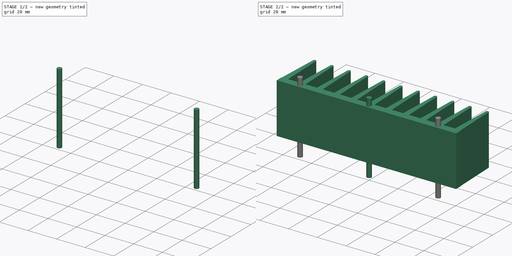
[diagram: build sequence overview — one tinted view per stage of 2, left to right]
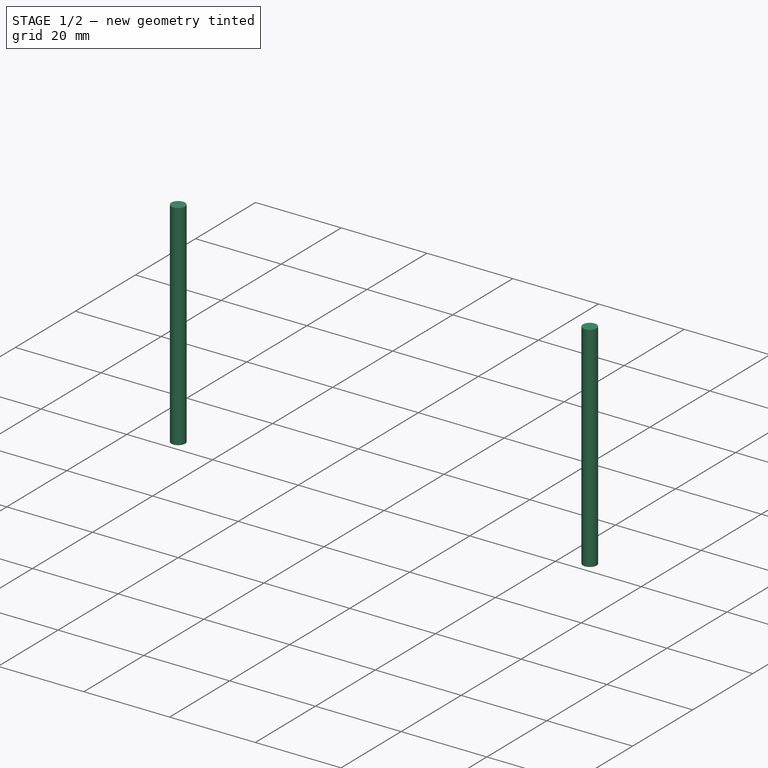
[diagram: stage 1 of 2 — iso view after this stage's code; geometry added in this stage tinted green]
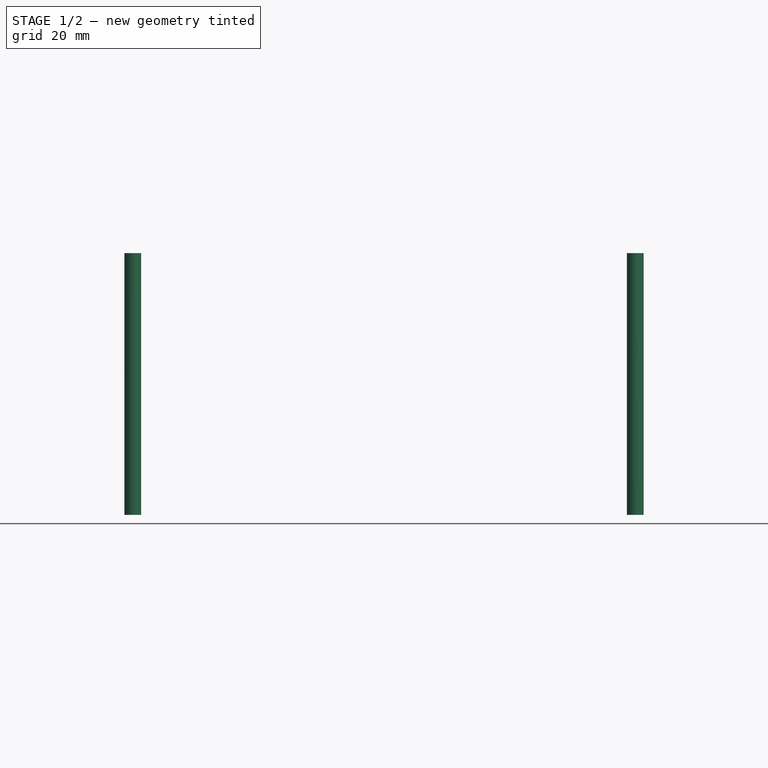
[diagram: stage 1 of 2 — front view after this stage's code; geometry added in this stage tinted green]
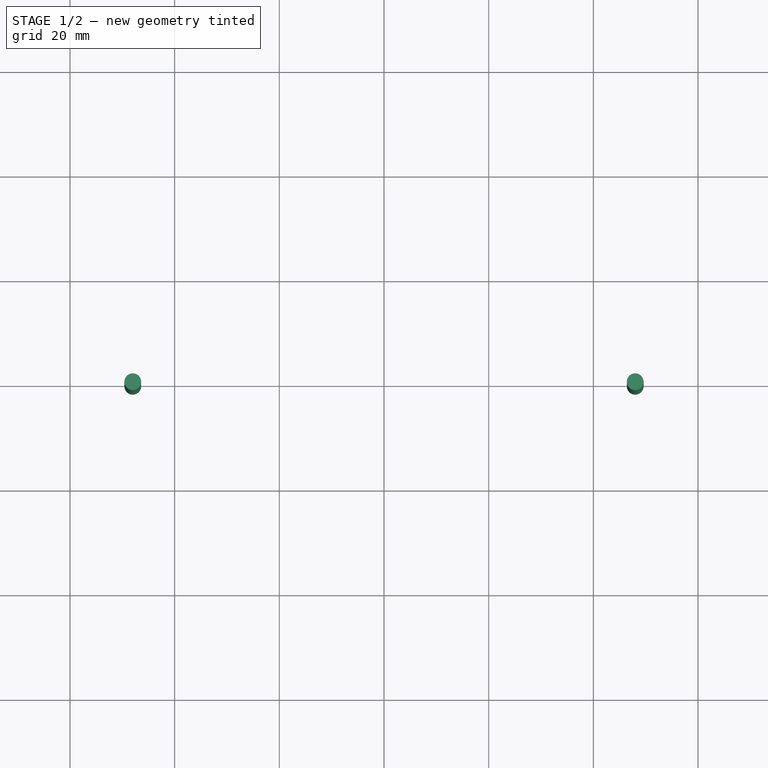
[diagram: stage 1 of 2 — top view after this stage's code; geometry added in this stage tinted green]
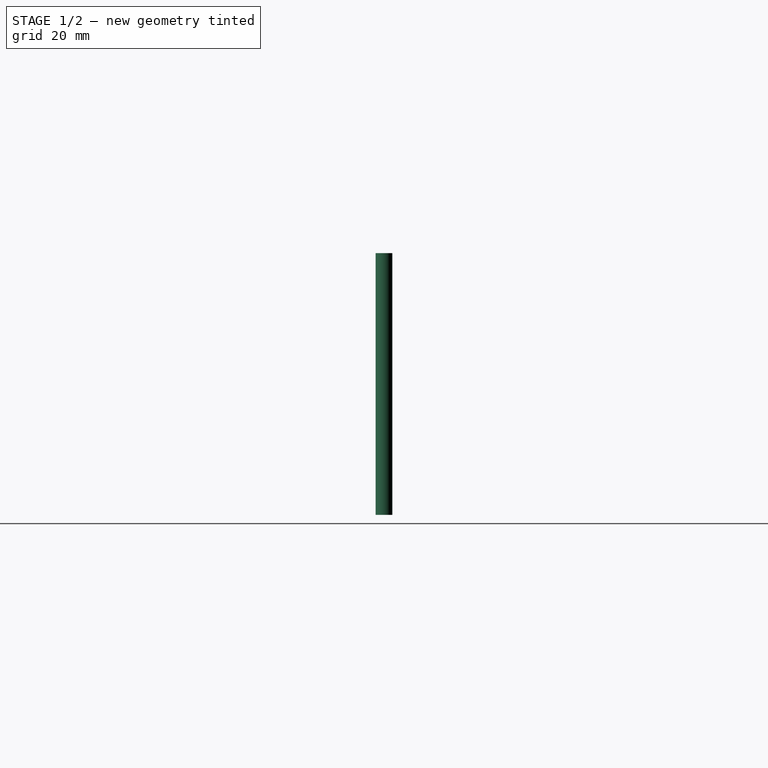
[diagram: stage 1 of 2 — right view after this stage's code; geometry added in this stage tinted green]
FCSTD DOCUMENT  (FreeCAD 0.17R11223 (Git))
Label: Heatsink_125x35x50mm_3xFixationM3_09
License: All rights reserved
LicenseURL: http://en.wikipedia.org/wiki/All_rights_reserved
objects: Part::Cylinder×3, Sketcher::SketchObject×1, PartDesign::Pad×1, PartDesign::Body×1
note: 7 computed .brp shape members not serialized (recipe doc carries the construction recipe); baked Part::Feature solids carry a one-line shape summary decoded from their .brp

FEATURE [Part::Cylinder] Cylinder001
  Angle = 360
  AttacherType = Attacher::AttachEngine3D
  Height = 50
  Placement = pos=(-48,0,-10) rot=(0,0,1;0rad)
  Radius = 1.6
FEATURE [Part::Cylinder] Cylinder002
  Angle = 360
  AttacherType = Attacher::AttachEngine3D
  Height = 50
  Placement = pos=(48,0,-10) rot=(0,0,1;0rad)
  Radius = 1.6
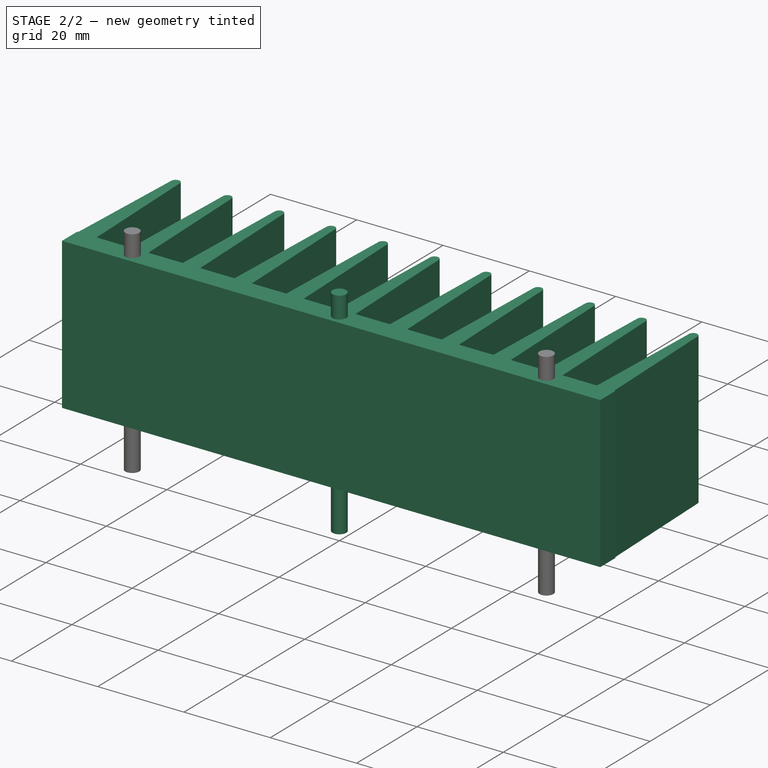
[diagram: stage 2 of 2 — iso view after this stage's code; geometry added in this stage tinted green]
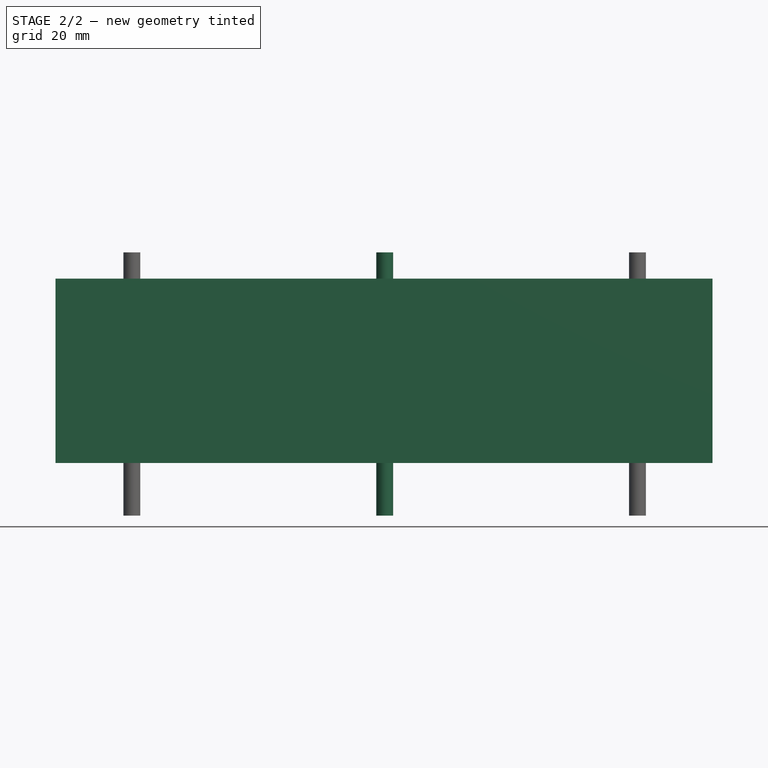
[diagram: stage 2 of 2 — front view after this stage's code; geometry added in this stage tinted green]
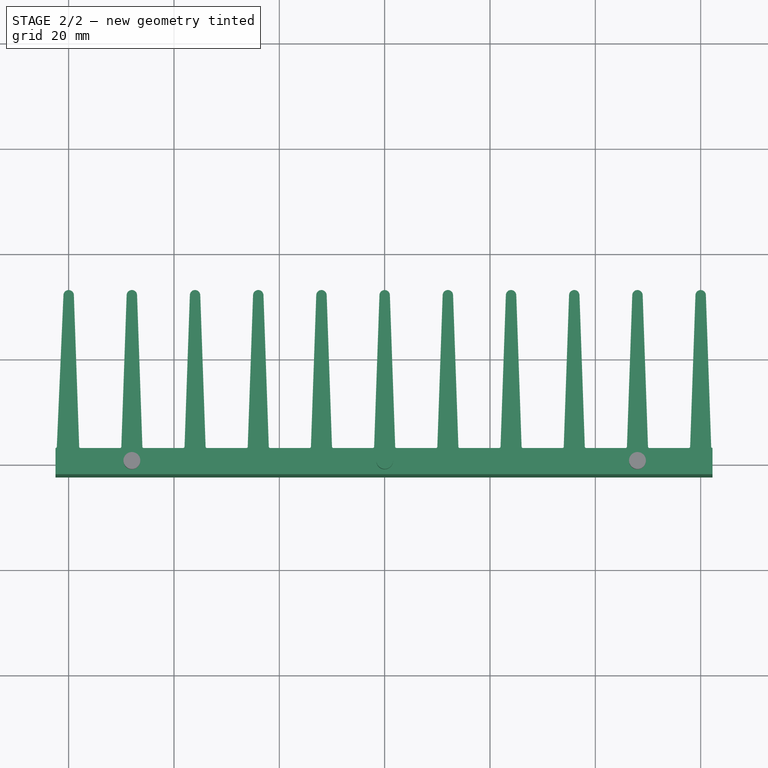
[diagram: stage 2 of 2 — top view after this stage's code; geometry added in this stage tinted green]
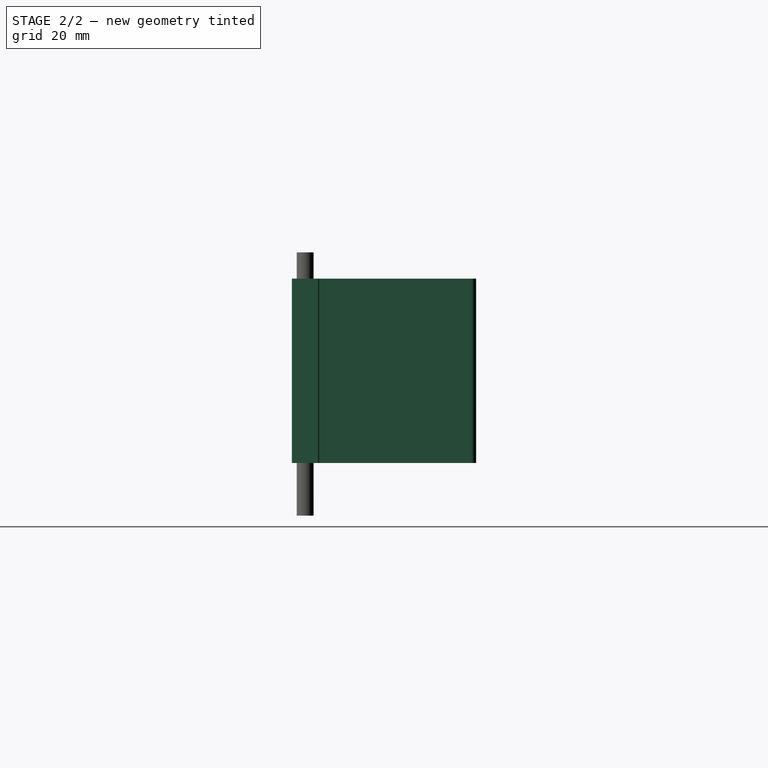
[diagram: stage 2 of 2 — right view after this stage's code; geometry added in this stage tinted green]
FEATURE [Sketcher::SketchObject] Sketch
  MapMode = 5
  Support = -> [XY_Plane]
  sketch-geometry (68):
    g0: LineSegment StartX=62.2489 StartY=-2.54 StartZ=0 EndX=-62.5 EndY=-2.54 EndZ=0
    g1: LineSegment StartX=-62.5 StartY=-2.54 StartZ=0 EndX=-62.5 EndY=2.46126 EndZ=0
    g2: ArcOfCircle CenterX=-62.5 CenterY=2.71126 CenterZ=0 NormalX=0 NormalY=0 NormalZ=1 Radius=0.25 StartAngle=4.71239 EndAngle=6.28319
    g3: LineSegment StartX=-62.25 StartY=2.71126 StartZ=0 EndX=-60.9899 EndY=31.463 EndZ=0
    g4: LineSegment StartX=-59.0099 StartY=31.463 StartZ=0 EndX=-58 EndY=2.71126 EndZ=0
    g5: ArcOfCircle CenterX=-59.9999 CenterY=31.463 CenterZ=0 NormalX=0 NormalY=0 NormalZ=1 Radius=0.99 StartAngle=0 EndAngle=3.14159
    g6: LineSegment StartX=62.2489 StartY=-2.54 StartZ=0 EndX=62.2489 EndY=2.46126 EndZ=0
    g7: ArcOfCircle CenterX=-57.75 CenterY=2.71126 CenterZ=0 NormalX=0 NormalY=0 NormalZ=1 Radius=0.25 StartAngle=3.14159 EndAngle=4.71239
    g8: ArcOfCircle CenterX=-50.2499 CenterY=2.71126 CenterZ=0 NormalX=0 NormalY=0 NormalZ=1 Radius=0.25 StartAngle=4.71239 EndAngle=6.28319
    g9: ArcOfCircle CenterX=-45.7519 CenterY=2.71126 CenterZ=0 NormalX=0 NormalY=0 NormalZ=1 Radius=0.25 StartAngle=3.14159 EndAngle=4.71239
    g10: LineSegment StartX=-47.0109 StartY=31.463 StartZ=0 EndX=-46.0019 EndY=2.71126 EndZ=0
    g11: LineSegment StartX=-49.9999 StartY=2.71126 StartZ=0 EndX=-48.9909 EndY=31.463 EndZ=0
    g12: ArcOfCircle CenterX=-48.0009 CenterY=31.463 CenterZ=0 NormalX=0 NormalY=0 NormalZ=1 Radius=0.99 StartAngle=0 EndAngle=3.14159
    g13: ArcOfCircle CenterX=-38.2484 CenterY=2.71126 CenterZ=0 NormalX=0 NormalY=0 NormalZ=1 Radius=0.25 StartAngle=4.71239 EndAngle=6.28319
    g14: ArcOfCircle CenterX=-33.7504 CenterY=2.71126 CenterZ=0 NormalX=0 NormalY=0 NormalZ=1 Radius=0.25 StartAngle=3.14159 EndAngle=4.71239
    g15: LineSegment StartX=-35.0094 StartY=31.463 StartZ=0 EndX=-34.0004 EndY=2.71126 EndZ=0
    g16: LineSegment StartX=-37.9984 StartY=2.71126 StartZ=0 EndX=-36.9894 EndY=31.463 EndZ=0
    g17: ArcOfCircle CenterX=-35.9994 CenterY=31.463 CenterZ=0 NormalX=0 NormalY=0 NormalZ=1 Radius=0.99 StartAngle=0 EndAngle=3.14159
    g18: ArcOfCircle CenterX=-26.249 CenterY=2.71126 CenterZ=0 NormalX=0 NormalY=0 NormalZ=1 Radius=0.25 StartAngle=4.71239 EndAngle=6.28319
    g19: ArcOfCircle CenterX=-21.751 CenterY=2.71126 CenterZ=0 NormalX=0 NormalY=0 NormalZ=1 Radius=0.25 StartAngle=3.14159 EndAngle=4.71239
    g20: LineSegment StartX=-23.01 StartY=31.463 StartZ=0 EndX=-22.001 EndY=2.71126 EndZ=0
    g21: LineSegment StartX=-25.999 StartY=2.71126 StartZ=0 EndX=-24.99 EndY=31.463 EndZ=0
    g22: ArcOfCircle CenterX=-24 CenterY=31.463 CenterZ=0 NormalX=0 NormalY=0 NormalZ=1 Radius=0.99 StartAngle=0 EndAngle=3.14159
    g23: ArcOfCircle CenterX=-14.249 CenterY=2.71126 CenterZ=0 NormalX=0 NormalY=0 NormalZ=1 Radius=0.25 StartAngle=4.71239 EndAngle=6.28319
    g24: ArcOfCircle CenterX=-9.75102 CenterY=2.71126 CenterZ=0 NormalX=0 NormalY=0 NormalZ=1 Radius=0.25 StartAngle=3.14159 EndAngle=4.71239
    g25: LineSegment StartX=-11.01 StartY=31.463 StartZ=0 EndX=-10.001 EndY=2.71126 EndZ=0
    g26: LineSegment StartX=-13.999 StartY=2.71126 StartZ=0 EndX=-12.99 EndY=31.463 EndZ=0
    g27: ArcOfCircle CenterX=-12 CenterY=31.463 CenterZ=0 NormalX=0 NormalY=0 NormalZ=1 Radius=0.99 StartAngle=0 EndAngle=3.14159
    g28: ArcOfCircle CenterX=-2.24898 CenterY=2.71126 CenterZ=0 NormalX=0 NormalY=0 NormalZ=1 Radius=0.25 StartAngle=4.71239 EndAngle=6.28319
    g29: ArcOfCircle CenterX=2.24898 CenterY=2.71126 CenterZ=0 NormalX=0 NormalY=0 NormalZ=1 Radius=0.25 StartAngle=3.14159 EndAngle=4.71239
    g30: LineSegment StartX=0.99 StartY=31.463 StartZ=0 EndX=1.99898 EndY=2.71126 EndZ=0
    g31: LineSegment StartX=-1.99898 StartY=2.71126 StartZ=0 EndX=-0.99 EndY=31.463 EndZ=0
    g32: ArcOfCircle CenterX=0 CenterY=31.463 CenterZ=0 NormalX=0 NormalY=0 NormalZ=1 Radius=0.99 StartAngle=0 EndAngle=3.14159
    g33: ArcOfCircle CenterX=9.75102 CenterY=2.71126 CenterZ=0 NormalX=0 NormalY=0 NormalZ=1 Radius=0.25 StartAngle=4.71239 EndAngle=6.28319
    g34: ArcOfCircle CenterX=14.249 CenterY=2.71126 CenterZ=0 NormalX=0 NormalY=0 NormalZ=1 Radius=0.25 StartAngle=3.14159 EndAngle=4.71239
    g35: LineSegment StartX=12.99 StartY=31.463 StartZ=0 EndX=13.999 EndY=2.71126 EndZ=0
    g36: LineSegment StartX=10.001 StartY=2.71126 StartZ=0 EndX=11.01 EndY=31.463 EndZ=0
    g37: ArcOfCircle CenterX=12 CenterY=31.463 CenterZ=0 NormalX=0 NormalY=0 NormalZ=1 Radius=0.99 StartAngle=0 EndAngle=3.14159
    g38: ArcOfCircle CenterX=21.751 CenterY=2.71126 CenterZ=0 NormalX=0 NormalY=0 NormalZ=1 Radius=0.25 StartAngle=4.71239 EndAngle=6.28319
    g39: ArcOfCircle CenterX=26.249 CenterY=2.71126 CenterZ=0 NormalX=0 NormalY=0 NormalZ=1 Radius=0.25 StartAngle=3.14159 EndAngle=4.71239
    g40: LineSegment StartX=24.99 StartY=31.463 StartZ=0 EndX=25.999 EndY=2.71126 EndZ=0
    g41: LineSegment StartX=22.001 StartY=2.71126 StartZ=0 EndX=23.01 EndY=31.463 EndZ=0
    g42: ArcOfCircle CenterX=24 CenterY=31.463 CenterZ=0 NormalX=0 NormalY=0 NormalZ=1 Radius=0.99 StartAngle=0 EndAngle=3.14159
    g43: ArcOfCircle CenterX=33.751 CenterY=2.71126 CenterZ=0 NormalX=0 NormalY=0 NormalZ=1 Radius=0.25 StartAngle=4.71239 EndAngle=6.28319
    g44: ArcOfCircle CenterX=38.249 CenterY=2.71126 CenterZ=0 NormalX=0 NormalY=0 NormalZ=1 Radius=0.25 StartAngle=3.14159 EndAngle=4.71239
    g45: LineSegment StartX=36.99 StartY=31.463 StartZ=0 EndX=37.999 EndY=2.71126 EndZ=0
    g46: LineSegment StartX=34.001 StartY=2.71126 StartZ=0 EndX=35.01 EndY=31.463 EndZ=0
    g47: ArcOfCircle CenterX=36 CenterY=31.463 CenterZ=0 NormalX=0 NormalY=0 NormalZ=1 Radius=0.99 StartAngle=0 EndAngle=3.14159
    g48: ArcOfCircle CenterX=45.751 CenterY=2.71126 CenterZ=0 NormalX=0 NormalY=0 NormalZ=1 Radius=0.25 StartAngle=4.71239 EndAngle=6.28319
    g49: ArcOfCircle CenterX=50.249 CenterY=2.71126 CenterZ=0 NormalX=0 NormalY=0 NormalZ=1 Radius=0.25 StartAngle=3.14159 EndAngle=4.71239
    g50: LineSegment StartX=48.99 StartY=31.463 StartZ=0 EndX=49.999 EndY=2.71126 EndZ=0
    g51: LineSegment StartX=46.001 StartY=2.71126 StartZ=0 EndX=47.01 EndY=31.463 EndZ=0
    g52: ArcOfCircle CenterX=48 CenterY=31.463 CenterZ=0 NormalX=0 NormalY=0 NormalZ=1 Radius=0.99 StartAngle=0 EndAngle=3.14159
    g53: ArcOfCircle CenterX=57.7509 CenterY=2.71126 CenterZ=0 NormalX=0 NormalY=0 NormalZ=1 Radius=0.25 StartAngle=4.71239 EndAngle=6.28319
    g54: ArcOfCircle CenterX=62.2489 CenterY=2.71126 CenterZ=0 NormalX=0 NormalY=0 NormalZ=1 Radius=0.25 StartAngle=3.14159 EndAngle=4.71239
    g55: LineSegment StartX=60.9899 StartY=31.463 StartZ=0 EndX=61.9989 EndY=2.71126 EndZ=0
    g56: LineSegment StartX=58.0009 StartY=2.71126 StartZ=0 EndX=59.0099 EndY=31.463 EndZ=0
    g57: ArcOfCircle CenterX=59.9999 CenterY=31.463 CenterZ=0 NormalX=0 NormalY=0 NormalZ=1 Radius=0.99 StartAngle=0 EndAngle=3.14159
    g58: LineSegment StartX=-57.75 StartY=2.46126 StartZ=0 EndX=-50.2499 EndY=2.46126 EndZ=0
    g59: LineSegment StartX=-45.7519 StartY=2.46126 StartZ=0 EndX=-38.2484 EndY=2.46126 EndZ=0
    g60: LineSegment StartX=-33.7504 StartY=2.46126 StartZ=0 EndX=-26.249 EndY=2.46126 EndZ=0
    g61: LineSegment StartX=-21.751 StartY=2.46126 StartZ=0 EndX=-14.249 EndY=2.46126 EndZ=0
    g62: LineSegment StartX=-9.75102 StartY=2.46126 StartZ=0 EndX=-2.24898 EndY=2.46126 EndZ=0
    g63: LineSegment StartX=2.24898 StartY=2.46126 StartZ=0 EndX=9.75102 EndY=2.46126 EndZ=0
    g64: LineSegment StartX=14.249 StartY=2.46126 StartZ=0 EndX=21.751 EndY=2.46126 EndZ=0
    g65: LineSegment StartX=26.249 StartY=2.46126 StartZ=0 EndX=33.751 EndY=2.46126 EndZ=0
    g66: LineSegment StartX=38.249 StartY=2.46126 StartZ=0 EndX=45.751 EndY=2.46126 EndZ=0
    g67: LineSegment StartX=50.249 StartY=2.46126 StartZ=0 EndX=57.7509 EndY=2.46126 EndZ=0
  constraints (241):
    c: Horizontal(g0)
    c: Coincident(g1,g0)
    c: Vertical(g1)
    c: Coincident(g2,g1)
    c: Radius(g2) = 0.25
    c: Coincident(g3,g2)
    c: DistanceX(g0,g-1) = 62.5
    c: DistanceX(g2,g1) = 0
    c: DistanceY(g2,g2) = 0
    c: DistanceY(g-1,g3) = 31.463
    c: DistanceY(g-1,g4) = 31.463
    c: DistanceX(g4,g-1) = 58
    c: Coincident(g5,g3)
    c: Coincident(g5,g4)
    c: DistanceY(g5,g4) = 0
    c: Coincident(g6,g0)
    c: Vertical(g6)
    c: Coincident(g7,g4)
    c: Radius(g7) = 0.25
    c: DistanceX(g7,g7) = 0
    c: DistanceY(g4,g7) = 0
    c: Radius(g8) = 0.25
    c: DistanceY(g8,g8) = 0
    c: Coincident(g12,g11)
    c: Coincident(g12,g10)
    c: Coincident(g9,g10)
    c: Radius(g9) = 0.25
    c: DistanceX(g9,g9) = 0
    c: DistanceY(g10,g9) = 0
    c: Radius(g13) = 0.25
    c: Coincident(g16,g13)
    c: DistanceY(g13,g13) = 0
    c: Coincident(g17,g16)
    c: Coincident(g17,g15)
    c: DistanceY(g17,g15) = 0
    c: Coincident(g14,g15)
    c: Radius(g14) = 0.25
    c: DistanceX(g14,g14) = 0
    c: DistanceY(g15,g14) = 0
    c: Radius(g18) = 0.25
    c: Coincident(g21,g18)
    c: DistanceY(g18,g18) = 0
    c: Coincident(g22,g21)
    c: Coincident(g22,g20)
    c: DistanceY(g22,g20) = 0
    c: Coincident(g19,g20)
    c: Radius(g19) = 0.25
    c: DistanceX(g19,g19) = 0
    c: DistanceY(g20,g19) = 0
    c: Radius(g23) = 0.25
    c: Coincident(g26,g23)
    c: DistanceY(g23,g23) = 0
    c: Coincident(g27,g26)
    c: Coincident(g27,g25)
    c: DistanceY(g27,g25) = 0
    c: Coincident(g24,g25)
    c: Radius(g24) = 0.25
    c: DistanceX(g24,g24) = 0
    c: DistanceY(g25,g24) = 0
    c: Radius(g28) = 0.25
    c: Coincident(g31,g28)
    c: DistanceY(g28,g28) = 0
    c: Coincident(g32,g31)
    c: Coincident(g32,g30)
    c: DistanceY(g32,g30) = 0
    c: Coincident(g29,g30)
    c: Radius(g29) = 0.25
    c: DistanceX(g29,g29) = 0
    c: DistanceY(g30,g29) = 0
    c: Radius(g33) = 0.25
    c: Coincident(g36,g33)
    c: DistanceY(g33,g33) = 0
    c: Coincident(g37,g36)
    c: Coincident(g37,g35)
    c: DistanceY(g37,g35) = 0
    c: Coincident(g34,g35)
    c: Radius(g34) = 0.25
    c: DistanceX(g34,g34) = 0
    c: DistanceY(g35,g34) = 0
    c: Radius(g38) = 0.25
    c: Coincident(g41,g38)
    c: DistanceY(g38,g38) = 0
    c: Coincident(g42,g41)
    c: Coincident(g42,g40)
    c: DistanceY(g42,g40) = 0
    c: Coincident(g39,g40)
    c: Radius(g39) = 0.25
    c: DistanceX(g39,g39) = 0
    c: DistanceY(g40,g39) = 0
    c: Radius(g43) = 0.25
    c: Coincident(g46,g43)
    c: DistanceY(g43,g43) = 0
    c: Coincident(g47,g46)
    c: Coincident(g47,g45)
    c: DistanceY(g47,g45) = 0
    c: Coincident(g44,g45)
    c: Radius(g44) = 0.25
    c: DistanceX(g44,g44) = 0
    c: DistanceY(g45,g44) = 0
    c: Radius(g48) = 0.25
    c: Coincident(g51,g48)
    c: DistanceY(g48,g48) = 0
    c: Coincident(g52,g51)
    c: Coincident(g52,g50)
    c: DistanceY(g52,g50) = 0
    c: Coincident(g49,g50)
    c: Radius(g49) = 0.25
    c: DistanceX(g49,g49) = 0
    c: DistanceY(g50,g49) = 0
    c: Radius(g53) = 0.25
    c: Coincident(g56,g53)
    c: DistanceY(g53,g53) = 0
    c: Coincident(g57,g56)
    c: Coincident(g57,g55)
    c: DistanceY(g57,g55) = 0
    c: Coincident(g54,g55)
    c: Radius(g54) = 0.25
    c: DistanceX(g54,g54) = 0
    c: DistanceY(g55,g54) = 0
    c: DistanceX(g8,g8) = 0.25
    c: DistanceX(g13,g13) = 0.25
    c: DistanceX(g18,g18) = 0.25
    c: DistanceX(g23,g23) = 0.25
    c: DistanceX(g28,g28) = 0.25
    c: DistanceX(g33,g33) = 0.25
    c: DistanceX(g38,g38) = 0.25
    c: DistanceX(g43,g43) = 0.25
    c: DistanceX(g48,g48) = 0.25
    c: DistanceX(g53,g53) = 0.25
    c: DistanceX(g23,g27) = 1.99898
    c: DistanceX(g28,g32) = 1.99898
    c: DistanceX(g33,g37) = 1.99898
    c: DistanceX(g38,g42) = 1.99898
    c: DistanceX(g43,g47) = 1.99898
    c: DistanceX(g48,g52) = 1.99898
    c: DistanceX(g53,g57) = 1.99898
    c: Coincident(g58,g7)
    c: Coincident(g58,g8)
    c: Horizontal(g58)
    c: Coincident(g59,g9)
    c: Coincident(g59,g13)
    c: Horizontal(g59)
    c: Coincident(g60,g14)
    c: Horizontal(g60)
    c: Tangent(g60,g18)
    c: Coincident(g61,g19)
    c: Coincident(g61,g23)
    c: Horizontal(g61)
    c: Coincident(g62,g24)
    c: Coincident(g62,g28)
    c: Horizontal(g62)
    c: Coincident(g63,g29)
    c: Coincident(g63,g33)
    c: Horizontal(g63)
    c: Coincident(g64,g34)
    c: Horizontal(g64)
    c: Tangent(g64,g38)
    c: Coincident(g65,g39)
    c: Coincident(g65,g43)
    c: Horizontal(g65)
    c: Coincident(g66,g44)
    c: Coincident(g66,g48)
    c: Horizontal(g66)
    c: Coincident(g67,g49)
    c: Coincident(g67,g53)
    c: Horizontal(g67)
    c: DistanceX(g12,g-1) = 48.0009
    c: DistanceX(g17,g-1) = 35.9994
    c: DistanceX(g22,g-1) = 24
    c: DistanceX(g27,g-1) = 12
    c: DistanceX(g-1,g32) = 0
    c: DistanceX(g-1,g37) = 12
    c: DistanceX(g-1,g42) = 24
    c: DistanceX(g-1,g47) = 36
    c: DistanceX(g-1,g52) = 48
    c: DistanceX(g-1,g57) = 59.9999
    c: DistanceX(g11,g10) = 1.98
    c: DistanceX(g16,g15) = 1.98
    c: DistanceX(g21,g20) = 1.98
    c: DistanceX(g26,g25) = 1.98
    c: DistanceX(g31,g30) = 1.98
    c: DistanceX(g36,g35) = 1.98
    c: DistanceX(g41,g40) = 1.98
    c: DistanceX(g46,g45) = 1.98
    c: DistanceX(g51,g50) = 1.98
    c: DistanceX(g8,g9) = 3.99796
    c: DistanceX(g11,g8) = 0
    c: DistanceX(g13,g14) = 3.99796
    c: DistanceX(g18,g19) = 3.99796
    c: DistanceX(g23,g24) = 3.99796
    c: DistanceX(g28,g29) = 3.99796
    c: DistanceX(g33,g34) = 3.99796
    c: DistanceX(g38,g39) = 3.99796
    c: DistanceX(g43,g44) = 3.99796
    c: DistanceX(g48,g49) = 3.99796
    c: DistanceX(g53,g54) = 3.99796
    c: DistanceY(g8,g9) = 0
    c: DistanceY(g13,g14) = 0
    c: DistanceX(g18,g60) = 0
    c: DistanceY(g18,g19) = 0
    c: DistanceY(g23,g24) = 0
    c: DistanceY(g28,g29) = 0
    c: DistanceY(g33,g34) = 0
    c: DistanceX(g38,g64) = 0
    c: DistanceY(g38,g39) = 0
    c: DistanceY(g43,g44) = 0
    c: DistanceY(g48,g49) = 0
    c: DistanceY(g53,g54) = 0
    c: DistanceX(g5,g-1) = 59.9999
    c: DistanceX(g3,g4) = 1.98
    c: DistanceY(g12,g10) = 0
    c: DistanceY(g5,g12) = 0
    c: DistanceY(g12,g17) = 0
    c: DistanceY(g17,g22) = 0
    c: DistanceY(g22,g27) = 0
    c: DistanceY(g27,g32) = 0
    c: DistanceY(g32,g37) = 0
    c: DistanceY(g37,g42) = 0
    c: DistanceY(g42,g47) = 0
    c: DistanceY(g47,g52) = 0
    c: DistanceY(g52,g57) = 0
    c: DistanceX(g8,g12) = 1.99898
    c: DistanceY(g17,g16) = 0
    c: DistanceX(g13,g17) = 1.99898
    c: DistanceX(g18,g22) = 1.99898
    c: DistanceY(g11,g12) = 0
    c: DistanceY(g26,g27) = 0
    c: DistanceY(g31,g32) = 0
    c: DistanceY(g36,g37) = 0
    c: DistanceY(g41,g42) = 0
    c: DistanceY(g46,g47) = 0
    c: DistanceY(g51,g52) = 0
    c: DistanceY(g56,g57) = 0
    c: DistanceX(g56,g55) = 1.98
    c: DistanceY(g6,g54) = 0
    c: DistanceX(g54,g6) = 0
    c: DistanceY(g7,g1) = 0
    c: DistanceY(g8,g11) = 0
    c: DistanceY(g22,g21) = 0
    c: DistanceY(g0,g-1) = 2.54
    c: DistanceY(g-1,g7) = 2.46126
FEATURE [PartDesign::Pad] Pad
  Length = 35
  Length2 = 100
  Profile = -> Sketch
  Type = 0
FEATURE [PartDesign::Body] Body
  Group = -> [Sketch,Pad]
  Origin = -> BodyOrigin
  Tip = -> Pad
FEATURE [Part::Cylinder] Cylinder
  Angle = 360
  AttacherType = Attacher::AttachEngine3D
  Height = 50
  Placement = pos=(0,0,-10) rot=(0,0,1;0rad)
  Radius = 1.6
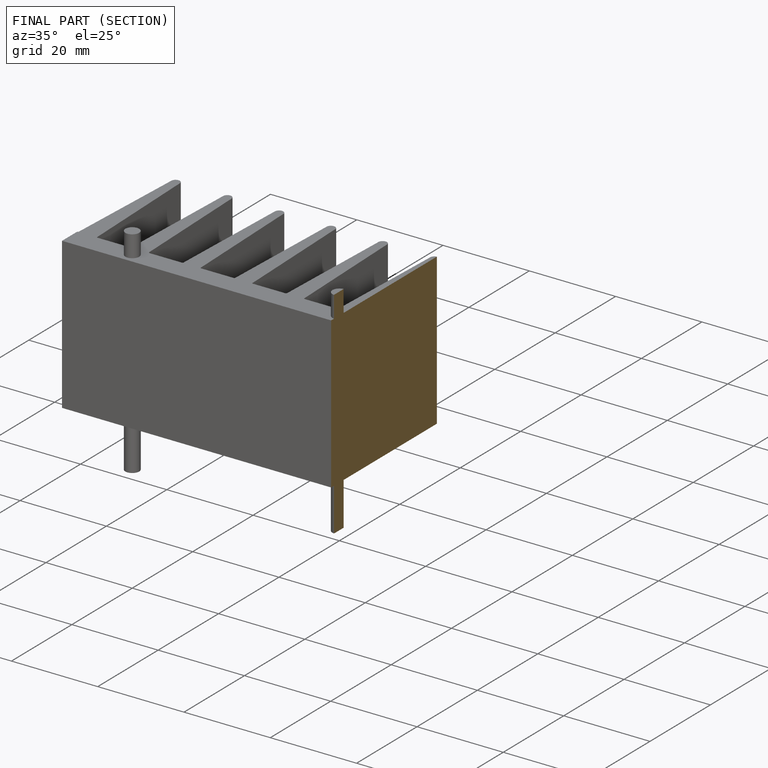
[diagram: finished part — half-section view (interior)]
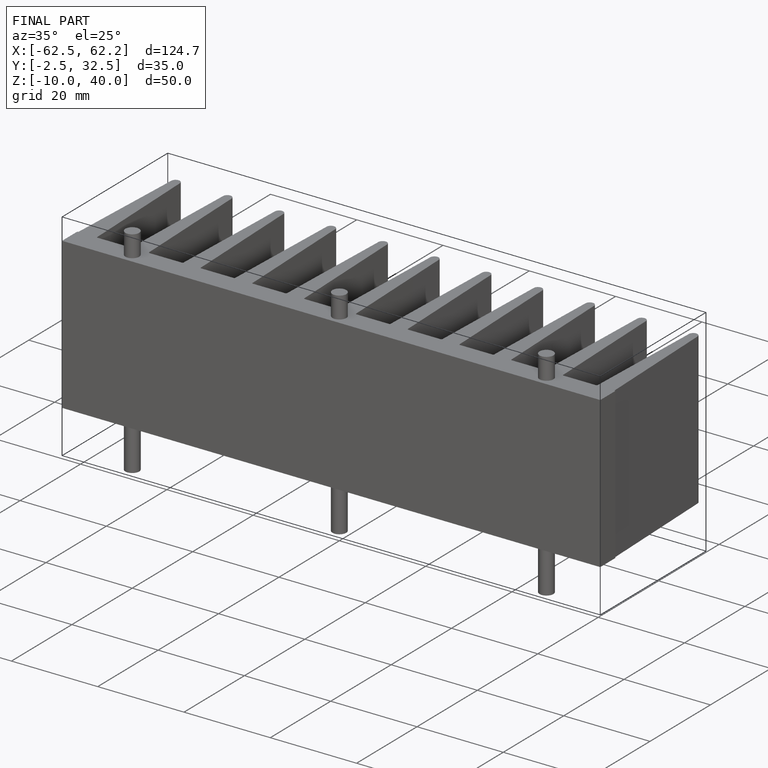
[diagram: finished part — iso view with bounding-box wireframe]
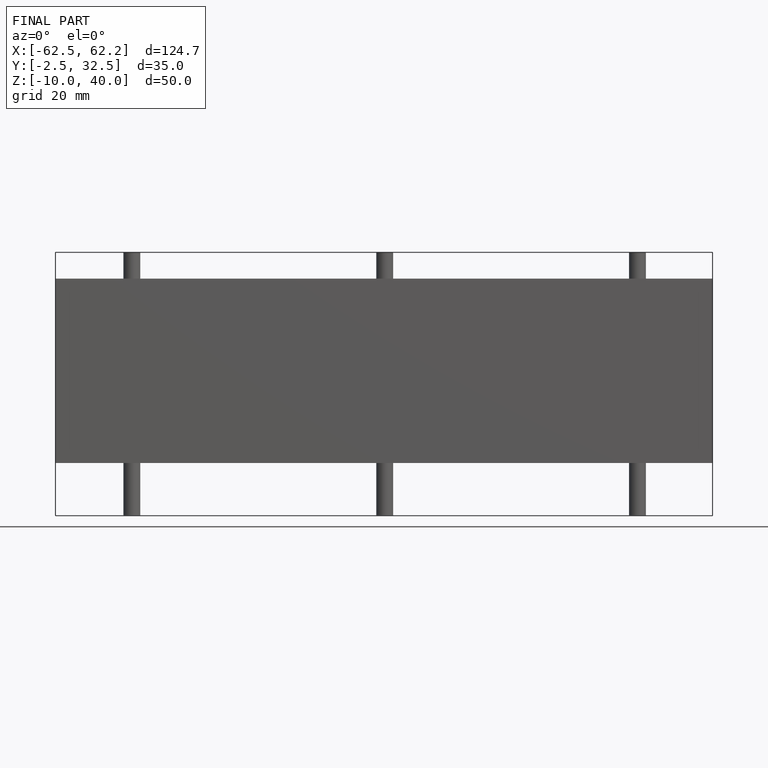
[diagram: finished part — front view with bounding-box wireframe]
